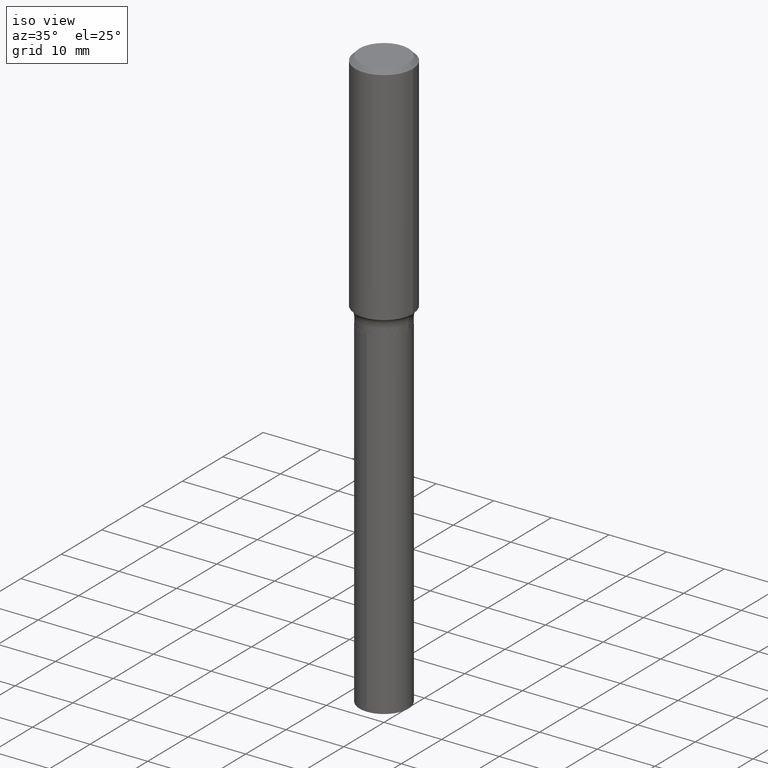
[diagram: clean part render]
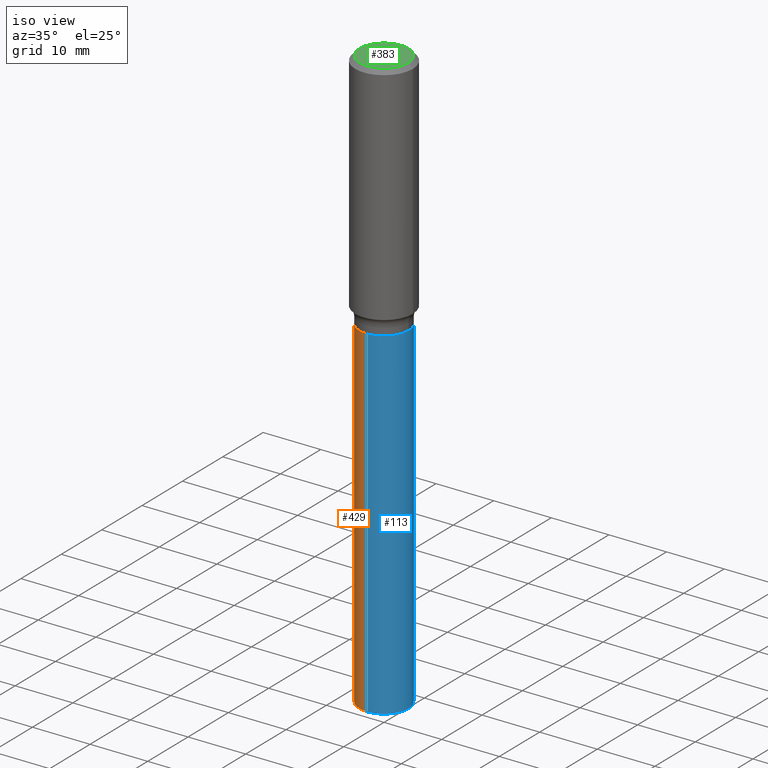
[diagram: same view with three faces highlighted in distinct colors, each labeled with its STEP entity id]
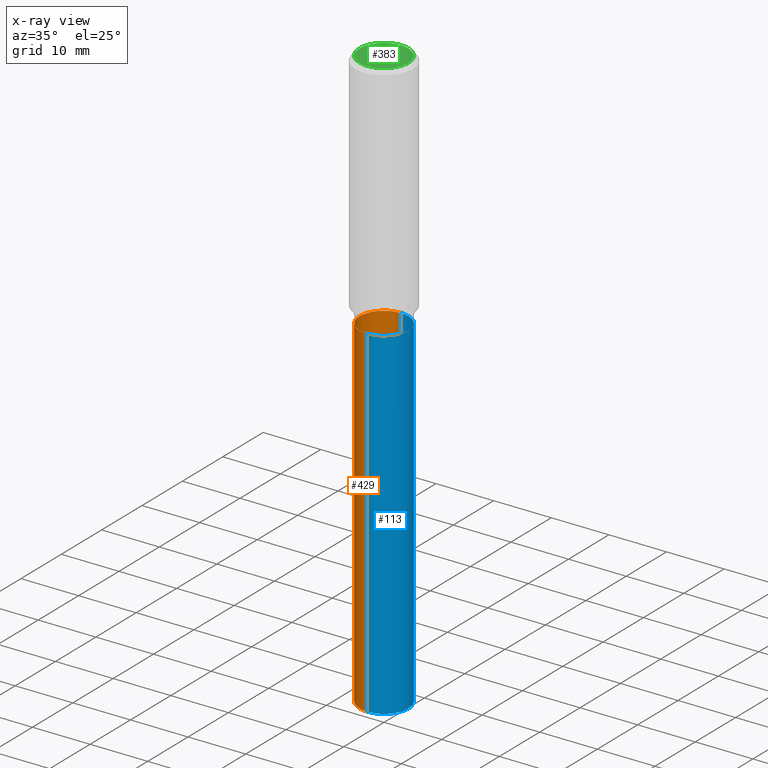
[diagram: x-ray of the same camera — body ghosted, the three highlighted faces saturated]
A machine part, iso view with three faces highlighted in distinct colors.
The next image is the same camera in x-ray (body ghosted, the three faces saturated) — at least one of them is partly hidden behind the body in this view.
Their STEP definitions:

[orange] entity #429 — the highlighted cylindrical surface (edge-blend (fillet) strip) has radius 4.2494 mm, axis along (-0, 0, 1).
#33 = DIRECTION ( 'NONE',  ( -6.982962677686266711E-15, -1.000000000000000000, 3.265807523806650431E-15 ) ) ;
#37 = LINE ( 'NONE', #414, #352 ) ;
#68 = CARTESIAN_POINT ( 'NONE',  ( -1.168249655976871963E-15, -0.1673000000000057774, -1.653399999999999093 ) ) ;
#80 = CYLINDRICAL_SURFACE ( 'NONE', #440, 0.1673000000000000043 ) ;
#88 = CIRCLE ( 'NONE', #236, 0.1673000000000000043 ) ;
#107 = VERTEX_POINT ( 'NONE', #131 ) ;
#121 = CARTESIAN_POINT ( 'NONE',  ( 4.043338124146503856E-29, -5.772815245643255193E-15, -1.653399999999999537 ) ) ;
#124 = CARTESIAN_POINT ( 'NONE',  ( 4.043338124146503856E-29, -5.772815245643255193E-15, -1.653399999999999537 ) ) ;
#131 = CARTESIAN_POINT ( 'NONE',  ( -1.168249655976814574E-15, -0.1673000000000139098, -3.987406412417778601 ) ) ;
#149 = CARTESIAN_POINT ( 'NONE',  ( -1.168249655976871963E-15, -0.1673000000000057774, -1.653399999999999093 ) ) ;
#154 = CIRCLE ( 'NONE', #246, 0.1673000000000000043 ) ;
#164 = DIRECTION ( 'NONE',  ( -6.982962677686266711E-15, -1.000000000000000000, 3.265807523806650431E-15 ) ) ;
#169 = CARTESIAN_POINT ( 'NONE',  ( 1.188737996926744868E-15, 0.1672999999999860432, -3.987406412417779933 ) ) ;
#226 = DIRECTION ( 'NONE',  ( -2.445507172700810819E-29, 3.491426395809013417E-15, 1.000000000000000000 ) ) ;
#236 = AXIS2_PLACEMENT_3D ( 'NONE', #121, #304, #33 ) ;
#246 = AXIS2_PLACEMENT_3D ( 'NONE', #282, #386, #377 ) ;
#251 = DIRECTION ( 'NONE',  ( -2.445507172700810819E-29, 3.491426395809013811E-15, 1.000000000000000000 ) ) ;
#256 = ORIENTED_EDGE ( 'NONE', *, *, #395, .F. ) ;
#270 = ORIENTED_EDGE ( 'NONE', *, *, #411, .F. ) ;
#272 = CARTESIAN_POINT ( 'NONE',  ( 1.188737996926745460E-15, 0.1672999999999942311, -1.653400000000000203 ) ) ;
#282 = CARTESIAN_POINT ( 'NONE',  ( 9.751167546843870264E-29, -1.392182684194619226E-14, -3.987406412417779489 ) ) ;
#304 = DIRECTION ( 'NONE',  ( -2.445507172700810819E-29, 3.491426395809013811E-15, 1.000000000000000000 ) ) ;
#312 = EDGE_LOOP ( 'NONE', ( #256, #347, #446, #270 ) ) ;
#321 = VERTEX_POINT ( 'NONE', #149 ) ;
#325 = VECTOR ( 'NONE', #226, 39.37007874015748143 ) ;
#347 = ORIENTED_EDGE ( 'NONE', *, *, #465, .T. ) ;
#352 = VECTOR ( 'NONE', #406, 39.37007874015748143 ) ;
#364 = EDGE_CURVE ( 'NONE', #107, #321, #476, .T. ) ;
#377 = DIRECTION ( 'NONE',  ( -6.982962677686266711E-15, -1.000000000000000000, 3.265807523806650431E-15 ) ) ;
#386 = DIRECTION ( 'NONE',  ( -2.445507172700810819E-29, 3.491426395809013811E-15, 1.000000000000000000 ) ) ;
#395 = EDGE_CURVE ( 'NONE', #458, #413, #37, .T. ) ;
#406 = DIRECTION ( 'NONE',  ( -2.445507172700810819E-29, 3.491426395809013417E-15, 1.000000000000000000 ) ) ;
#411 = EDGE_CURVE ( 'NONE', #413, #321, #88, .T. ) ;
#413 = VERTEX_POINT ( 'NONE', #272 ) ;
#414 = CARTESIAN_POINT ( 'NONE',  ( 1.188737996926688070E-15, 0.1672999999999942311, -1.653400000000000203 ) ) ;
#416 = FACE_OUTER_BOUND ( 'NONE', #312, .T. ) ;
#429 = ADVANCED_FACE ( 'NONE', ( #416 ), #80, .T. ) ;
#440 = AXIS2_PLACEMENT_3D ( 'NONE', #124, #251, #164 ) ;
#446 = ORIENTED_EDGE ( 'NONE', *, *, #364, .T. ) ;
#458 = VERTEX_POINT ( 'NONE', #169 ) ;
#465 = EDGE_CURVE ( 'NONE', #458, #107, #154, .T. ) ;
#476 = LINE ( 'NONE', #68, #325 ) ;

[blue] entity #113 — the highlighted cylindrical surface (edge-blend (fillet) strip) has radius 4.2494 mm, axis along (-0, 0, 1).
#18 = EDGE_LOOP ( 'NONE', ( #340, #235, #157, #296 ) ) ;
#32 = CIRCLE ( 'NONE', #426, 0.1673000000000000043 ) ;
#37 = LINE ( 'NONE', #414, #352 ) ;
#46 = DIRECTION ( 'NONE',  ( -6.982962677686266711E-15, -1.000000000000000000, 3.265807523806650431E-15 ) ) ;
#59 = EDGE_CURVE ( 'NONE', #321, #413, #32, .T. ) ;
#68 = CARTESIAN_POINT ( 'NONE',  ( -1.168249655976871963E-15, -0.1673000000000057774, -1.653399999999999093 ) ) ;
#93 = DIRECTION ( 'NONE',  ( -2.445507172700810819E-29, 3.491426395809013811E-15, 1.000000000000000000 ) ) ;
#107 = VERTEX_POINT ( 'NONE', #131 ) ;
#113 = ADVANCED_FACE ( 'NONE', ( #316 ), #280, .T. ) ;
#131 = CARTESIAN_POINT ( 'NONE',  ( -1.168249655976814574E-15, -0.1673000000000139098, -3.987406412417778601 ) ) ;
#134 = DIRECTION ( 'NONE',  ( -2.445507172700810819E-29, 3.491426395809013811E-15, 1.000000000000000000 ) ) ;
#140 = EDGE_CURVE ( 'NONE', #107, #458, #153, .T. ) ;
#149 = CARTESIAN_POINT ( 'NONE',  ( -1.168249655976871963E-15, -0.1673000000000057774, -1.653399999999999093 ) ) ;
#153 = CIRCLE ( 'NONE', #417, 0.1673000000000000043 ) ;
#157 = ORIENTED_EDGE ( 'NONE', *, *, #59, .F. ) ;
#169 = CARTESIAN_POINT ( 'NONE',  ( 1.188737996926744868E-15, 0.1672999999999860432, -3.987406412417779933 ) ) ;
#210 = DIRECTION ( 'NONE',  ( -2.445507172700810819E-29, 3.491426395809013811E-15, 1.000000000000000000 ) ) ;
#226 = DIRECTION ( 'NONE',  ( -2.445507172700810819E-29, 3.491426395809013417E-15, 1.000000000000000000 ) ) ;
#235 = ORIENTED_EDGE ( 'NONE', *, *, #395, .T. ) ;
#272 = CARTESIAN_POINT ( 'NONE',  ( 1.188737996926745460E-15, 0.1672999999999942311, -1.653400000000000203 ) ) ;
#280 = CYLINDRICAL_SURFACE ( 'NONE', #297, 0.1673000000000000043 ) ;
#283 = CARTESIAN_POINT ( 'NONE',  ( 9.751167546843870264E-29, -1.392182684194619226E-14, -3.987406412417779489 ) ) ;
#285 = CARTESIAN_POINT ( 'NONE',  ( 4.043338124146503856E-29, -5.772815245643255193E-15, -1.653399999999999537 ) ) ;
#296 = ORIENTED_EDGE ( 'NONE', *, *, #364, .F. ) ;
#297 = AXIS2_PLACEMENT_3D ( 'NONE', #285, #134, #46 ) ;
#314 = DIRECTION ( 'NONE',  ( -6.982962677686266711E-15, -1.000000000000000000, 3.265807523806650431E-15 ) ) ;
#316 = FACE_OUTER_BOUND ( 'NONE', #18, .T. ) ;
#321 = VERTEX_POINT ( 'NONE', #149 ) ;
#323 = DIRECTION ( 'NONE',  ( -6.982962677686266711E-15, -1.000000000000000000, 3.265807523806650431E-15 ) ) ;
#325 = VECTOR ( 'NONE', #226, 39.37007874015748143 ) ;
#340 = ORIENTED_EDGE ( 'NONE', *, *, #140, .T. ) ;
#345 = CARTESIAN_POINT ( 'NONE',  ( 4.043338124146503856E-29, -5.772815245643255193E-15, -1.653399999999999537 ) ) ;
#352 = VECTOR ( 'NONE', #406, 39.37007874015748143 ) ;
#364 = EDGE_CURVE ( 'NONE', #107, #321, #476, .T. ) ;
#395 = EDGE_CURVE ( 'NONE', #458, #413, #37, .T. ) ;
#406 = DIRECTION ( 'NONE',  ( -2.445507172700810819E-29, 3.491426395809013417E-15, 1.000000000000000000 ) ) ;
#413 = VERTEX_POINT ( 'NONE', #272 ) ;
#414 = CARTESIAN_POINT ( 'NONE',  ( 1.188737996926688070E-15, 0.1672999999999942311, -1.653400000000000203 ) ) ;
#417 = AXIS2_PLACEMENT_3D ( 'NONE', #283, #93, #323 ) ;
#426 = AXIS2_PLACEMENT_3D ( 'NONE', #345, #210, #314 ) ;
#458 = VERTEX_POINT ( 'NONE', #169 ) ;
#476 = LINE ( 'NONE', #68, #325 ) ;

[green] entity #383 — the highlighted planar face has unit normal (0, -0, -1).
#43 = DIRECTION ( 'NONE',  ( 1.000000000000000000, -6.982962677686267499E-15, 4.876294436782262290E-29 ) ) ;
#45 = EDGE_CURVE ( 'NONE', #219, #415, #324, .T. ) ;
#50 = AXIS2_PLACEMENT_3D ( 'NONE', #54, #346, #168 ) ;
#52 = CARTESIAN_POINT ( 'NONE',  ( -1.001697619218021790E-46, 1.430158722866389718E-32, 4.096137381448108366E-18 ) ) ;
#54 = CARTESIAN_POINT ( 'NONE',  ( -1.001697619218021790E-46, 1.430158722866389718E-32, 4.096137381448108366E-18 ) ) ;
#66 = ORIENTED_EDGE ( 'NONE', *, *, #82, .T. ) ;
#82 = EDGE_CURVE ( 'NONE', #415, #219, #350, .T. ) ;
#116 = DIRECTION ( 'NONE',  ( -1.000000000000000000, 6.982962677686265922E-15, -4.876176775795935793E-29 ) ) ;
#119 = FACE_OUTER_BOUND ( 'NONE', #162, .T. ) ;
#139 = ORIENTED_EDGE ( 'NONE', *, *, #45, .T. ) ;
#162 = EDGE_LOOP ( 'NONE', ( #66, #139 ) ) ;
#168 = DIRECTION ( 'NONE',  ( 1.000000000000000000, -6.982962677686267499E-15, 4.876294436782262290E-29 ) ) ;
#197 = CARTESIAN_POINT ( 'NONE',  ( -0.1673224999999999851, 1.219954130253505460E-15, 4.096137381439757534E-18 ) ) ;
#214 = DIRECTION ( 'NONE',  ( -2.445468806185136597E-29, 3.491481338843145583E-15, 1.000000000000000000 ) ) ;
#219 = VERTEX_POINT ( 'NONE', #474 ) ;
#300 = DIRECTION ( 'NONE',  ( 2.438088387897960049E-29, -3.491481338843145188E-15, -1.000000000000000000 ) ) ;
#324 = CIRCLE ( 'NONE', #50, 0.1673224999999999851 ) ;
#346 = DIRECTION ( 'NONE',  ( -2.445468806185136597E-29, 3.491481338843145583E-15, 1.000000000000000000 ) ) ;
#350 = CIRCLE ( 'NONE', #452, 0.1673224999999999851 ) ;
#383 = ADVANCED_FACE ( 'NONE', ( #119 ), #409, .F. ) ;
#409 = PLANE ( 'NONE',  #448 ) ;
#415 = VERTEX_POINT ( 'NONE', #197 ) ;
#448 = AXIS2_PLACEMENT_3D ( 'NONE', #454, #300, #116 ) ;
#452 = AXIS2_PLACEMENT_3D ( 'NONE', #52, #214, #43 ) ;
#454 = CARTESIAN_POINT ( 'NONE',  ( -5.008488096090108951E-47, 7.150793614331948590E-33, 2.048068690724054183E-18 ) ) ;
#474 = CARTESIAN_POINT ( 'NONE',  ( 0.1673224999999999851, -1.300749711163072594E-15, 4.096137381456741925E-18 ) ) ;